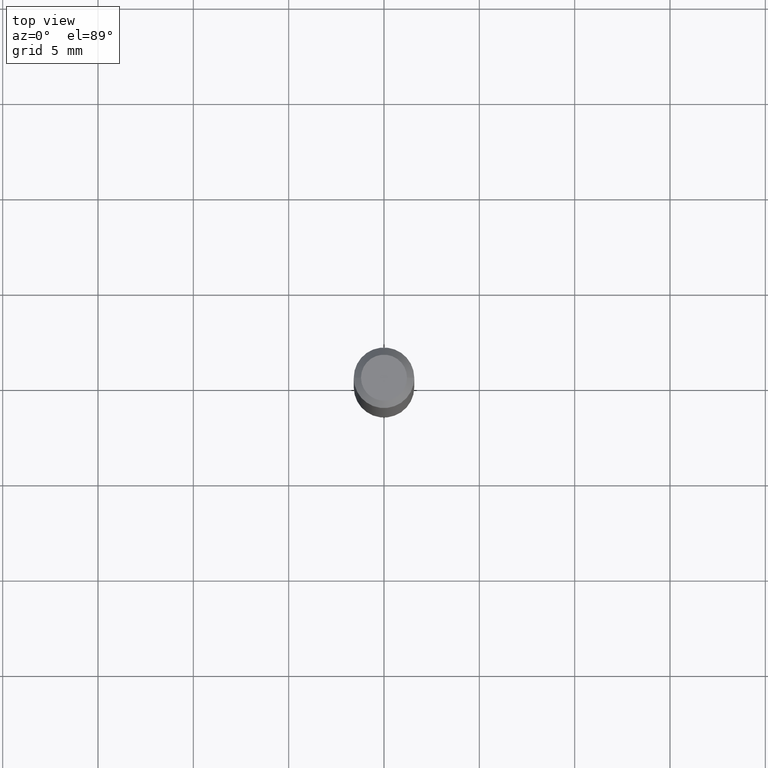
[diagram: clean part render]
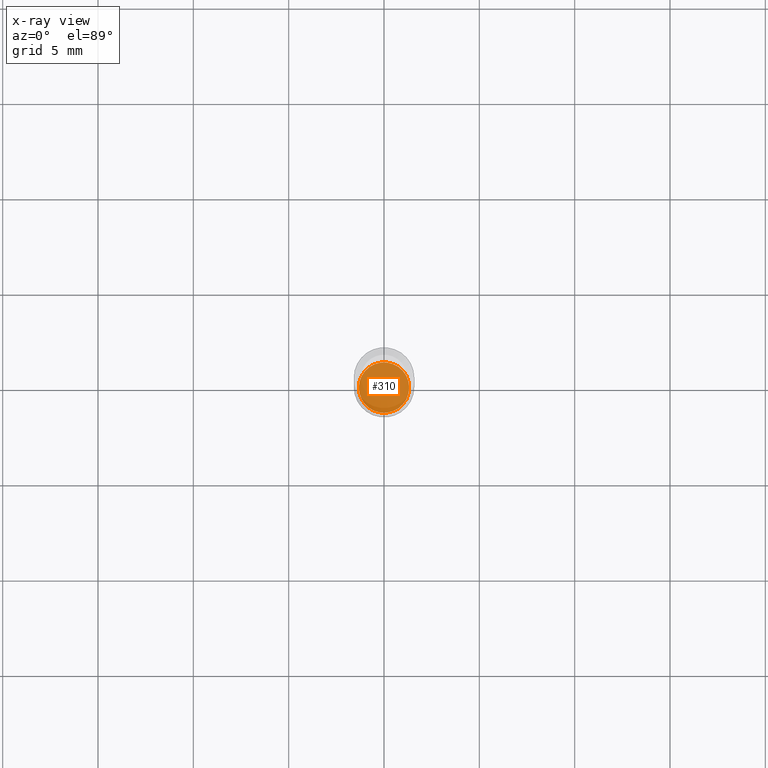
[diagram: x-ray — body ghosted, one internal face saturated and labeled with its STEP entity id]
A machine part, top view, then the same camera in x-ray: the body is ghosted and one INTERNAL B-rep face — a face not visible from any outside direction — is saturated and labeled: STEP entity #310.
In plain terms, the highlighted planar face has unit normal (-0, 0, 1).
Its self-contained STEP definition (entity closure, byte-faithful):
#14 = AXIS2_PLACEMENT_3D ( 'NONE', #234, #316, #404 ) ;
#35 = EDGE_LOOP ( 'NONE', ( #361, #196 ) ) ;
#41 = DIRECTION ( 'NONE',  ( -2.445468806185136597E-29, 3.491481338843145583E-15, 1.000000000000000000 ) ) ;
#65 = CIRCLE ( 'NONE', #14, 0.05200000000000008782 ) ;
#94 = DIRECTION ( 'NONE',  ( -2.438088387897960049E-29, 3.491481338843145188E-15, 1.000000000000000000 ) ) ;
#108 = AXIS2_PLACEMENT_3D ( 'NONE', #158, #41, #276 ) ;
#139 = CARTESIAN_POINT ( 'NONE',  ( -0.05200000000000008782, -3.765273936759763915E-15, -1.185000000000000053 ) ) ;
#158 = CARTESIAN_POINT ( 'NONE',  ( 2.897880535329386822E-29, -4.137405386529127541E-15, -1.185000000000000053 ) ) ;
#166 = CIRCLE ( 'NONE', #108, 0.05200000000000008782 ) ;
#173 = EDGE_CURVE ( 'NONE', #351, #284, #166, .T. ) ;
#196 = ORIENTED_EDGE ( 'NONE', *, *, #224, .F. ) ;
#224 = EDGE_CURVE ( 'NONE', #284, #351, #65, .T. ) ;
#234 = CARTESIAN_POINT ( 'NONE',  ( 2.897880535329386822E-29, -4.137405386529127541E-15, -1.185000000000000053 ) ) ;
#249 = CARTESIAN_POINT ( 'NONE',  ( 0.05200000000000008782, -4.500519445768814483E-15, -1.185000000000000053 ) ) ;
#257 = CARTESIAN_POINT ( 'NONE',  ( 2.897880535329386822E-29, -4.137405386529127541E-15, -1.185000000000000053 ) ) ;
#268 = FACE_OUTER_BOUND ( 'NONE', #35, .T. ) ;
#276 = DIRECTION ( 'NONE',  ( 1.000000000000000000, -6.982962677686274599E-15, 0.000000000000000000 ) ) ;
#284 = VERTEX_POINT ( 'NONE', #139 ) ;
#310 = ADVANCED_FACE ( 'NONE', ( #268 ), #469, .F. ) ;
#316 = DIRECTION ( 'NONE',  ( -2.445468806185136597E-29, 3.491481338843145583E-15, 1.000000000000000000 ) ) ;
#351 = VERTEX_POINT ( 'NONE', #249 ) ;
#361 = ORIENTED_EDGE ( 'NONE', *, *, #173, .F. ) ;
#375 = AXIS2_PLACEMENT_3D ( 'NONE', #257, #94, #426 ) ;
#404 = DIRECTION ( 'NONE',  ( 1.000000000000000000, -6.982962677686274599E-15, 0.000000000000000000 ) ) ;
#426 = DIRECTION ( 'NONE',  ( 1.000000000000000000, -6.982962677686265922E-15, 4.876176775795935793E-29 ) ) ;
#469 = PLANE ( 'NONE',  #375 ) ;